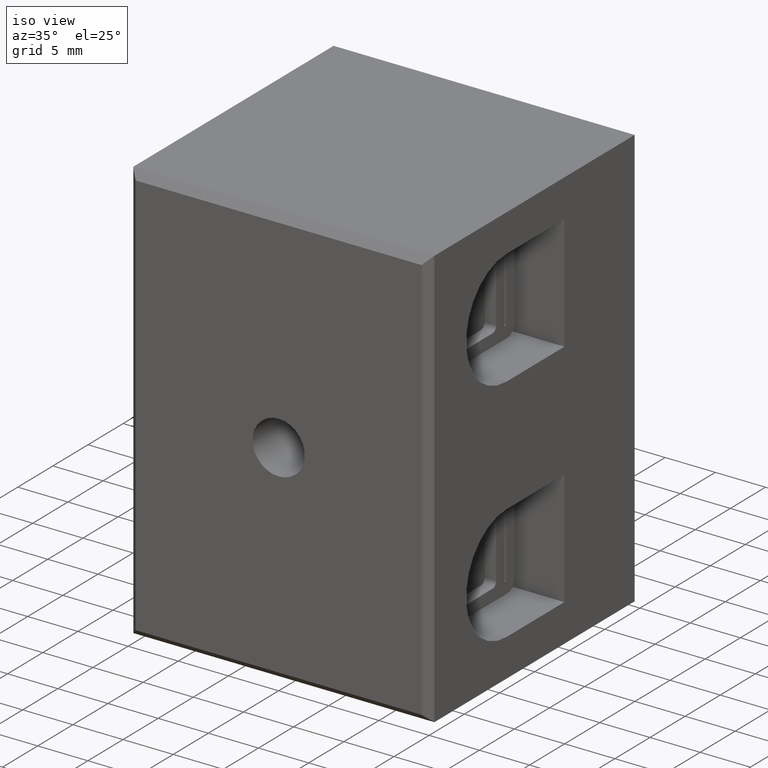
[diagram: clean part render]
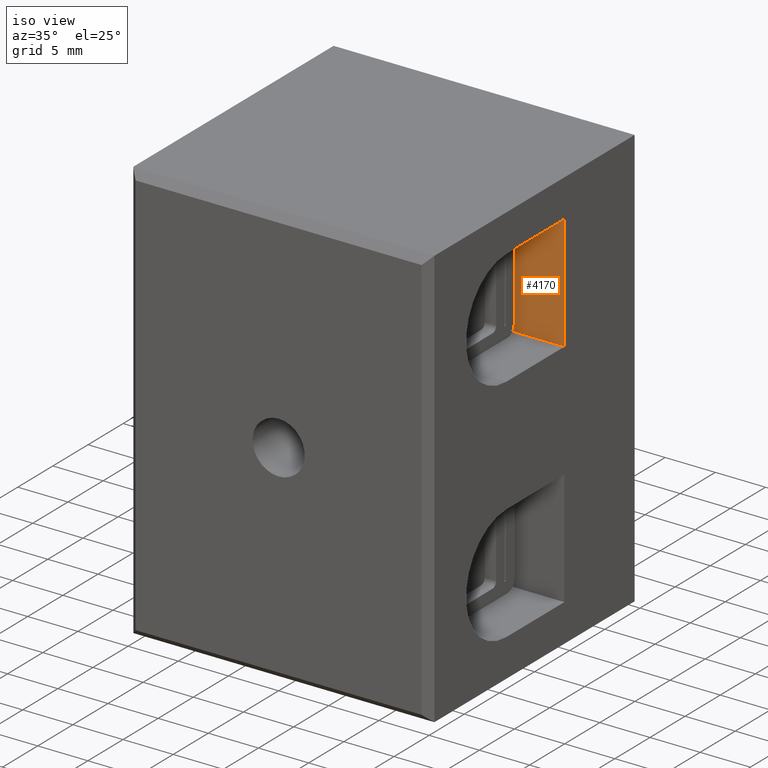
[diagram: same view with one face highlighted and labeled with its STEP entity id]
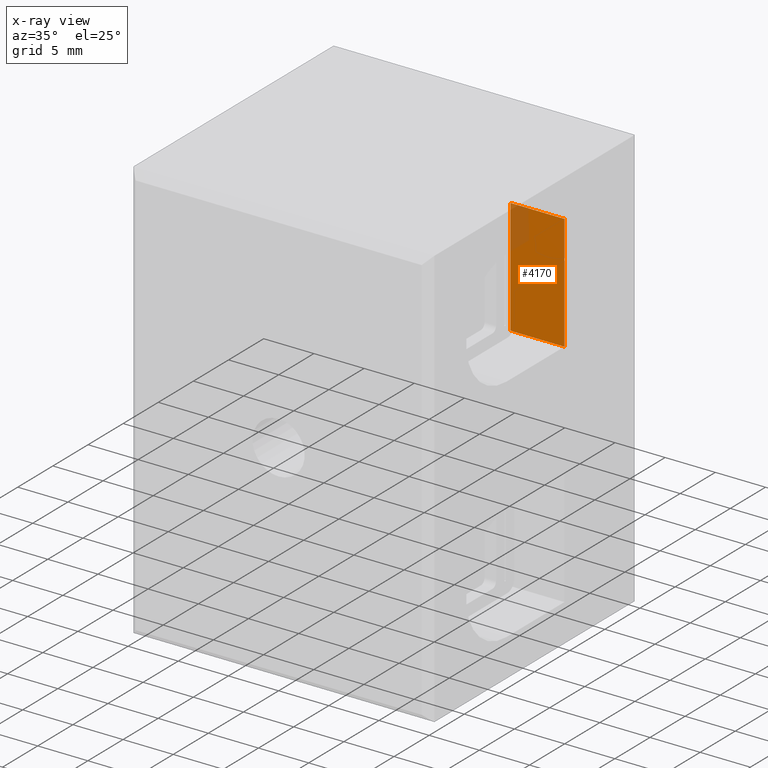
[diagram: x-ray of the same camera — body ghosted, the highlighted face saturated]
A machine part, iso view. The second image highlights one B-rep face of the part: STEP entity #4170.
The next image is the same camera in x-ray: the body ghosted, the highlighted face saturated — about 11% of this face is hidden behind the body in this view.
In plain terms, the highlighted planar face has unit normal (0, 1, -0).
Its self-contained STEP definition (entity closure, byte-faithful):
#157 = EDGE_LOOP ( 'NONE', ( #564, #543, #585, #589 ) ) ;
#543 = ORIENTED_EDGE ( 'NONE', *, *, #4572, .T. ) ;
#564 = ORIENTED_EDGE ( 'NONE', *, *, #4576, .F. ) ;
#585 = ORIENTED_EDGE ( 'NONE', *, *, #4573, .T. ) ;
#589 = ORIENTED_EDGE ( 'NONE', *, *, #4528, .T. ) ;
#1706 = VERTEX_POINT ( 'NONE', #2106 ) ;
#1713 = VERTEX_POINT ( 'NONE', #2078 ) ;
#1720 = VERTEX_POINT ( 'NONE', #2110 ) ;
#1731 = VERTEX_POINT ( 'NONE', #2116 ) ;
#2078 = CARTESIAN_POINT ( 'NONE',  ( 24.59999999999999400, 19.25000000000000400, -3.750000000000003600 ) ) ;
#2106 = CARTESIAN_POINT ( 'NONE',  ( 30.00000000000000000, 19.24999999999999600, -15.25000000000000000 ) ) ;
#2110 = CARTESIAN_POINT ( 'NONE',  ( 30.00000000000000000, 19.25000000000000000, -3.750000000000003600 ) ) ;
#2116 = CARTESIAN_POINT ( 'NONE',  ( 24.59999999999999400, 19.24999999999999600, -15.25000000000000000 ) ) ;
#2962 = DIRECTION ( 'NONE',  ( -1.000000000000000000, -0.0000000000000000000, 0.0000000000000000000 ) ) ;
#2974 = CARTESIAN_POINT ( 'NONE',  ( 52.00000000000001400, 19.25000000000000400, -3.750000000000003600 ) ) ;
#2992 = LINE ( 'NONE', #2974, #6186 ) ;
#3090 = CARTESIAN_POINT ( 'NONE',  ( 52.00000000000001400, 19.24999999999999600, -15.25000000000000000 ) ) ;
#3091 = DIRECTION ( 'NONE',  ( 1.000000000000000000, -0.0000000000000000000, 0.0000000000000000000 ) ) ;
#3098 = LINE ( 'NONE', #3100, #6255 ) ;
#3100 = CARTESIAN_POINT ( 'NONE',  ( 30.00000000000000000, 19.24999999999999600, 0.0000000000000000000 ) ) ;
#3101 = DIRECTION ( 'NONE',  ( 0.0000000000000000000, 0.0000000000000000000, 1.000000000000000000 ) ) ;
#3107 = LINE ( 'NONE', #3090, #6244 ) ;
#3487 = DIRECTION ( 'NONE',  ( 0.0000000000000000000, 1.000000000000000000, -3.016910393003144300E-016 ) ) ;
#3492 = DIRECTION ( 'NONE',  ( 0.0000000000000000000, 3.016910393003144300E-016, 1.000000000000000000 ) ) ;
#3511 = PLANE ( 'NONE',  #6674 ) ;
#3513 = FACE_OUTER_BOUND ( 'NONE', #157, .T. ) ;
#3514 = CARTESIAN_POINT ( 'NONE',  ( 52.00000000000001400, 19.24999999999999600, -15.25000000000000000 ) ) ;
#4170 = ADVANCED_FACE ( 'NONE', ( #3513 ), #3511, .F. ) ;
#4528 = EDGE_CURVE ( 'NONE', #1720, #1713, #2992, .T. ) ;
#4572 = EDGE_CURVE ( 'NONE', #1731, #1706, #3107, .T. ) ;
#4573 = EDGE_CURVE ( 'NONE', #1706, #1720, #3098, .T. ) ;
#4576 = EDGE_CURVE ( 'NONE', #1731, #1713, #5721, .T. ) ;
#5715 = CARTESIAN_POINT ( 'NONE',  ( 24.59999999999999100, 19.24999999999999600, -15.25000000000000000 ) ) ;
#5721 = LINE ( 'NONE', #5715, #6237 ) ;
#5722 = DIRECTION ( 'NONE',  ( 0.0000000000000000000, 3.016910393003144300E-016, 1.000000000000000000 ) ) ;
#6186 = VECTOR ( 'NONE', #2962, 1000.000000000000000 ) ;
#6237 = VECTOR ( 'NONE', #5722, 1000.000000000000000 ) ;
#6244 = VECTOR ( 'NONE', #3091, 1000.000000000000000 ) ;
#6255 = VECTOR ( 'NONE', #3101, 1000.000000000000000 ) ;
#6674 = AXIS2_PLACEMENT_3D ( 'NONE', #3514, #3487, #3492 ) ;